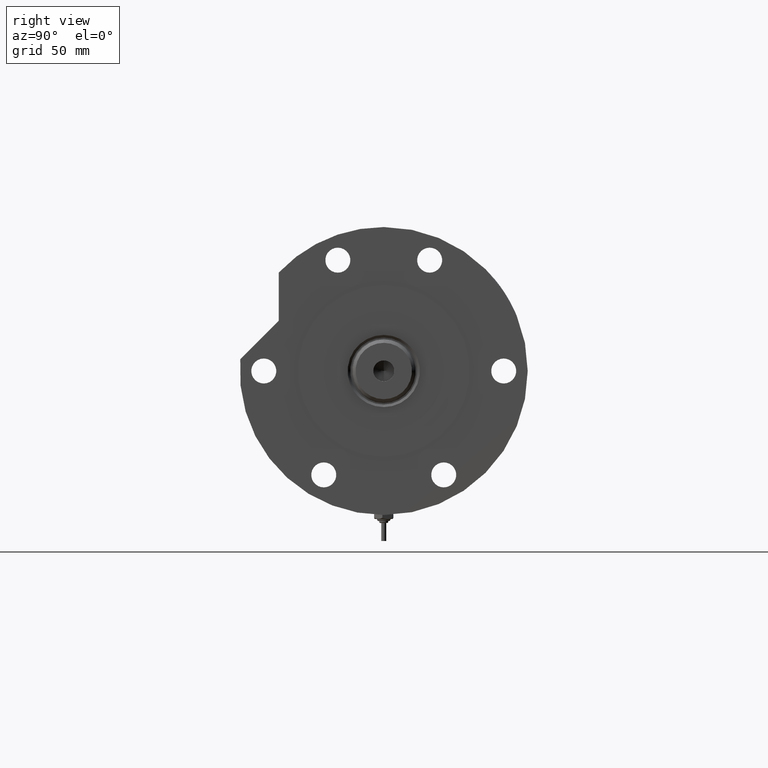
[diagram: clean part render]
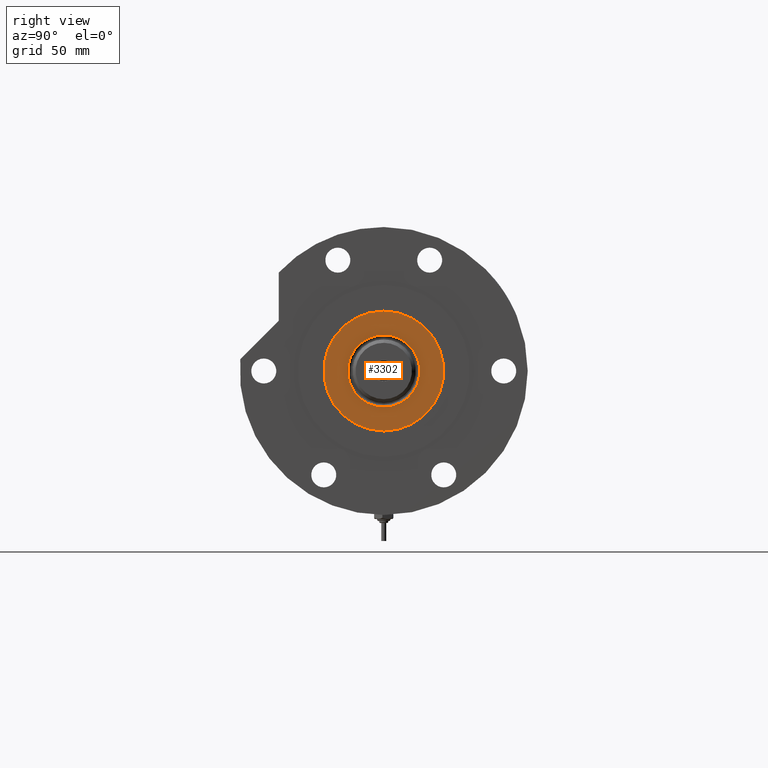
[diagram: same view with one face highlighted and labeled with its STEP entity id]
A machine part, right view. The second image highlights one B-rep face of the part: STEP entity #3302.
In plain terms, the highlighted planar face has unit normal (1, 0, -0).
Its self-contained STEP definition (entity closure, byte-faithful):
#1198 = DIRECTION ( 'NONE',  ( 1.000000000000000000, 0.000000000000000000, 0.000000000000000000 ) ) ;
#1224 = CARTESIAN_POINT ( 'NONE',  ( 30.00000000000000000, 3.673940397442058389E-15, 50.19999999999999574 ) ) ;
#1240 = AXIS2_PLACEMENT_3D ( 'NONE', #2425, #6441, #1198 ) ;
#1461 = EDGE_CURVE ( 'NONE', #3003, #6676, #7549, .T. ) ;
#2161 = VERTEX_POINT ( 'NONE', #6783 ) ;
#2189 = DIRECTION ( 'NONE',  ( -0.000000000000000000, -0.000000000000000000, -1.000000000000000000 ) ) ;
#2241 = CARTESIAN_POINT ( 'NONE',  ( 0.000000000000000000, 0.000000000000000000, 50.19999999999999574 ) ) ;
#2425 = CARTESIAN_POINT ( 'NONE',  ( 0.000000000000000000, 0.000000000000000000, 50.19999999999999574 ) ) ;
#2468 = AXIS2_PLACEMENT_3D ( 'NONE', #3829, #2189, #3299 ) ;
#2583 = CIRCLE ( 'NONE', #4644, 18.04999999999996874 ) ;
#2721 = CIRCLE ( 'NONE', #2468, 18.04999999999996874 ) ;
#2936 = CARTESIAN_POINT ( 'NONE',  ( -30.00000000000000000, 0.000000000000000000, 50.19999999999999574 ) ) ;
#3003 = VERTEX_POINT ( 'NONE', #2936 ) ;
#3299 = DIRECTION ( 'NONE',  ( 1.000000000000000000, 0.000000000000000000, 0.000000000000000000 ) ) ;
#3302 = ADVANCED_FACE ( 'NONE', ( #3453, #4594 ), #7472, .T. ) ;
#3353 = DIRECTION ( 'NONE',  ( 0.000000000000000000, 0.000000000000000000, 1.000000000000000000 ) ) ;
#3453 = FACE_BOUND ( 'NONE', #3945, .T. ) ;
#3476 = VERTEX_POINT ( 'NONE', #5056 ) ;
#3518 = AXIS2_PLACEMENT_3D ( 'NONE', #2241, #3353, #7442 ) ;
#3787 = AXIS2_PLACEMENT_3D ( 'NONE', #4058, #4563, #6435 ) ;
#3829 = CARTESIAN_POINT ( 'NONE',  ( 0.000000000000000000, 0.000000000000000000, 50.19999999999999574 ) ) ;
#3945 = EDGE_LOOP ( 'NONE', ( #6084, #6282 ) ) ;
#4056 = EDGE_LOOP ( 'NONE', ( #7010, #5453 ) ) ;
#4058 = CARTESIAN_POINT ( 'NONE',  ( 0.000000000000000000, 0.000000000000000000, 50.19999999999999574 ) ) ;
#4563 = DIRECTION ( 'NONE',  ( 0.000000000000000000, 0.000000000000000000, 1.000000000000000000 ) ) ;
#4594 = FACE_OUTER_BOUND ( 'NONE', #4056, .T. ) ;
#4644 = AXIS2_PLACEMENT_3D ( 'NONE', #4902, #6555, #5401 ) ;
#4902 = CARTESIAN_POINT ( 'NONE',  ( 0.000000000000000000, 0.000000000000000000, 50.19999999999999574 ) ) ;
#5056 = CARTESIAN_POINT ( 'NONE',  ( -18.04999999999996874, 2.210487472460968951E-15, 50.19999999999999574 ) ) ;
#5401 = DIRECTION ( 'NONE',  ( 1.000000000000000000, 0.000000000000000000, 0.000000000000000000 ) ) ;
#5453 = ORIENTED_EDGE ( 'NONE', *, *, #6286, .T. ) ;
#6084 = ORIENTED_EDGE ( 'NONE', *, *, #6358, .T. ) ;
#6282 = ORIENTED_EDGE ( 'NONE', *, *, #6558, .T. ) ;
#6286 = EDGE_CURVE ( 'NONE', #6676, #3003, #7226, .T. ) ;
#6358 = EDGE_CURVE ( 'NONE', #2161, #3476, #2583, .T. ) ;
#6435 = DIRECTION ( 'NONE',  ( 1.000000000000000000, 0.000000000000000000, -0.000000000000000000 ) ) ;
#6441 = DIRECTION ( 'NONE',  ( 0.000000000000000000, 0.000000000000000000, 1.000000000000000000 ) ) ;
#6555 = DIRECTION ( 'NONE',  ( -0.000000000000000000, -0.000000000000000000, -1.000000000000000000 ) ) ;
#6558 = EDGE_CURVE ( 'NONE', #3476, #2161, #2721, .T. ) ;
#6676 = VERTEX_POINT ( 'NONE', #1224 ) ;
#6783 = CARTESIAN_POINT ( 'NONE',  ( 18.04999999999996874, 0.000000000000000000, 50.19999999999999574 ) ) ;
#7010 = ORIENTED_EDGE ( 'NONE', *, *, #1461, .T. ) ;
#7226 = CIRCLE ( 'NONE', #1240, 30.00000000000000000 ) ;
#7442 = DIRECTION ( 'NONE',  ( 1.000000000000000000, 0.000000000000000000, 0.000000000000000000 ) ) ;
#7472 = PLANE ( 'NONE',  #3787 ) ;
#7549 = CIRCLE ( 'NONE', #3518, 30.00000000000000000 ) ;